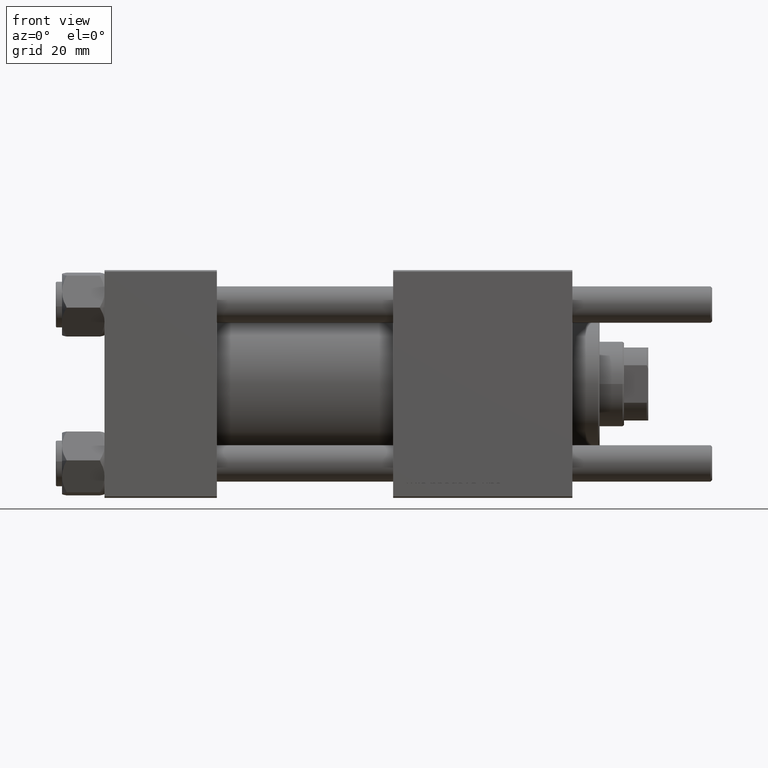
[diagram: clean part render]
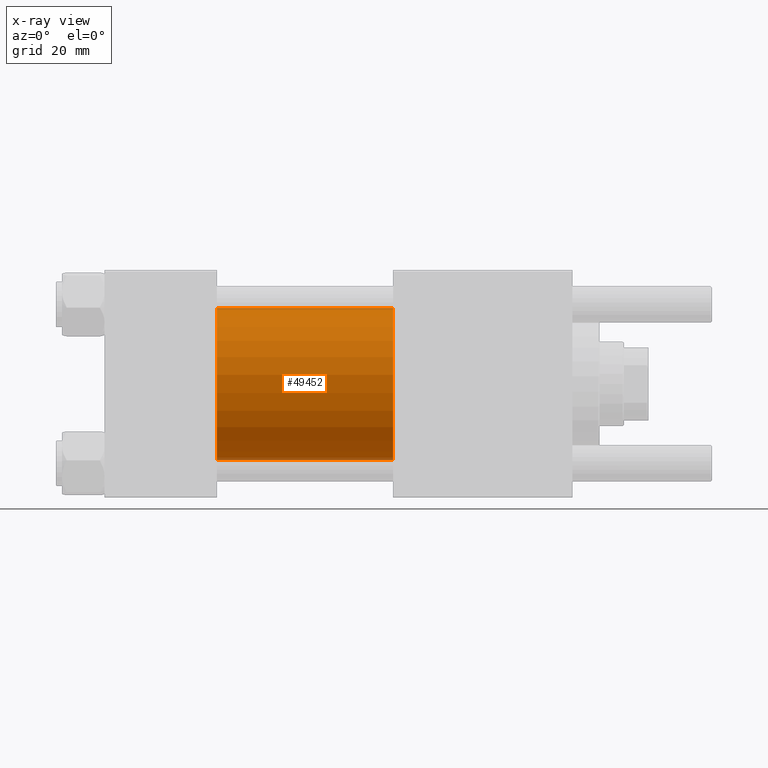
[diagram: x-ray — body ghosted, one internal face saturated and labeled with its STEP entity id]
A machine part, front view, then the same camera in x-ray: the body is ghosted and one INTERNAL B-rep face — a face not visible from any outside direction — is saturated and labeled: STEP entity #49452.
In plain terms, the highlighted cylindrical surface (partial cylindrical patch) has radius 25 mm, axis along (-1, -0, -0).
Its self-contained STEP definition (entity closure, byte-faithful):
#1437 = CARTESIAN_POINT ( 'NONE',  ( 37.00000000000000000, 4.595317839031718093E-16, -25.00000000000000000 ) ) ;
#1958 = ORIENTED_EDGE ( 'NONE', *, *, #40697, .T. ) ;
#7168 = EDGE_CURVE ( 'NONE', #43503, #50490, #45450, .T. ) ;
#10084 = DIRECTION ( 'NONE',  ( 0.000000000000000000, 0.000000000000000000, -1.000000000000000000 ) ) ;
#10819 = DIRECTION ( 'NONE',  ( 0.000000000000000000, 0.000000000000000000, -1.000000000000000000 ) ) ;
#11209 = DIRECTION ( 'NONE',  ( 0.000000000000000000, 0.000000000000000000, 1.000000000000000000 ) ) ;
#12318 = LINE ( 'NONE', #51036, #48584 ) ;
#14854 = DIRECTION ( 'NONE',  ( 1.000000000000000000, 0.000000000000000000, 0.000000000000000000 ) ) ;
#15971 = CARTESIAN_POINT ( 'NONE',  ( 95.00000000000000000, -2.602085213965210642E-15, 0.000000000000000000 ) ) ;
#16076 = FACE_OUTER_BOUND ( 'NONE', #17415, .T. ) ;
#17313 = DIRECTION ( 'NONE',  ( -1.000000000000000000, -0.000000000000000000, -0.000000000000000000 ) ) ;
#17415 = EDGE_LOOP ( 'NONE', ( #1958, #32081, #25049, #53773 ) ) ;
#17585 = AXIS2_PLACEMENT_3D ( 'NONE', #54523, #28405, #11209 ) ;
#21910 = CIRCLE ( 'NONE', #33833, 25.00000000000000000 ) ;
#23281 = DIRECTION ( 'NONE',  ( 1.000000000000000000, 0.000000000000000000, 0.000000000000000000 ) ) ;
#25049 = ORIENTED_EDGE ( 'NONE', *, *, #7168, .F. ) ;
#26234 = AXIS2_PLACEMENT_3D ( 'NONE', #49948, #23281, #10084 ) ;
#26462 = CARTESIAN_POINT ( 'NONE',  ( 95.00000000000000000, -2.602085213965210642E-15, 25.00000000000000000 ) ) ;
#27887 = CARTESIAN_POINT ( 'NONE',  ( 95.00000000000000000, -2.602085213965210642E-15, 25.00000000000000000 ) ) ;
#28405 = DIRECTION ( 'NONE',  ( -1.000000000000000000, -0.000000000000000000, -0.000000000000000000 ) ) ;
#32081 = ORIENTED_EDGE ( 'NONE', *, *, #39479, .T. ) ;
#33833 = AXIS2_PLACEMENT_3D ( 'NONE', #15971, #14854, #10819 ) ;
#37870 = CYLINDRICAL_SURFACE ( 'NONE', #17585, 25.00000000000000000 ) ;
#37926 = EDGE_CURVE ( 'NONE', #40432, #43503, #47716, .T. ) ;
#38182 = CARTESIAN_POINT ( 'NONE',  ( 37.00000000000000000, -2.602085213965210642E-15, 25.00000000000000000 ) ) ;
#38424 = VERTEX_POINT ( 'NONE', #39613 ) ;
#39479 = EDGE_CURVE ( 'NONE', #38424, #50490, #12318, .T. ) ;
#39613 = CARTESIAN_POINT ( 'NONE',  ( 95.00000000000000000, 4.595317839031718093E-16, -25.00000000000000000 ) ) ;
#40432 = VERTEX_POINT ( 'NONE', #27887 ) ;
#40697 = EDGE_CURVE ( 'NONE', #40432, #38424, #21910, .T. ) ;
#42719 = DIRECTION ( 'NONE',  ( -1.000000000000000000, -0.000000000000000000, -0.000000000000000000 ) ) ;
#43503 = VERTEX_POINT ( 'NONE', #38182 ) ;
#45450 = CIRCLE ( 'NONE', #26234, 25.00000000000000000 ) ;
#47716 = LINE ( 'NONE', #26462, #53384 ) ;
#48584 = VECTOR ( 'NONE', #42719, 1000.000000000000000 ) ;
#49452 = ADVANCED_FACE ( 'NONE', ( #16076 ), #37870, .F. ) ;
#49948 = CARTESIAN_POINT ( 'NONE',  ( 37.00000000000000000, -2.602085213965210642E-15, 0.000000000000000000 ) ) ;
#50490 = VERTEX_POINT ( 'NONE', #1437 ) ;
#51036 = CARTESIAN_POINT ( 'NONE',  ( 95.00000000000000000, 4.595317839031718093E-16, -25.00000000000000000 ) ) ;
#53384 = VECTOR ( 'NONE', #17313, 1000.000000000000000 ) ;
#53773 = ORIENTED_EDGE ( 'NONE', *, *, #37926, .F. ) ;
#54523 = CARTESIAN_POINT ( 'NONE',  ( 95.00000000000000000, -2.602085213965210642E-15, 0.000000000000000000 ) ) ;